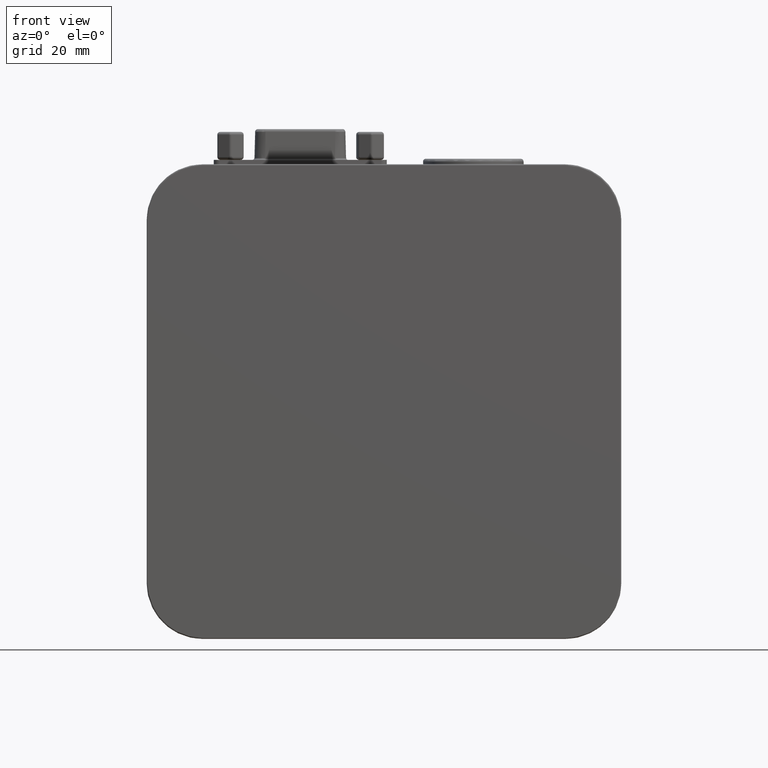
[diagram: clean part render]
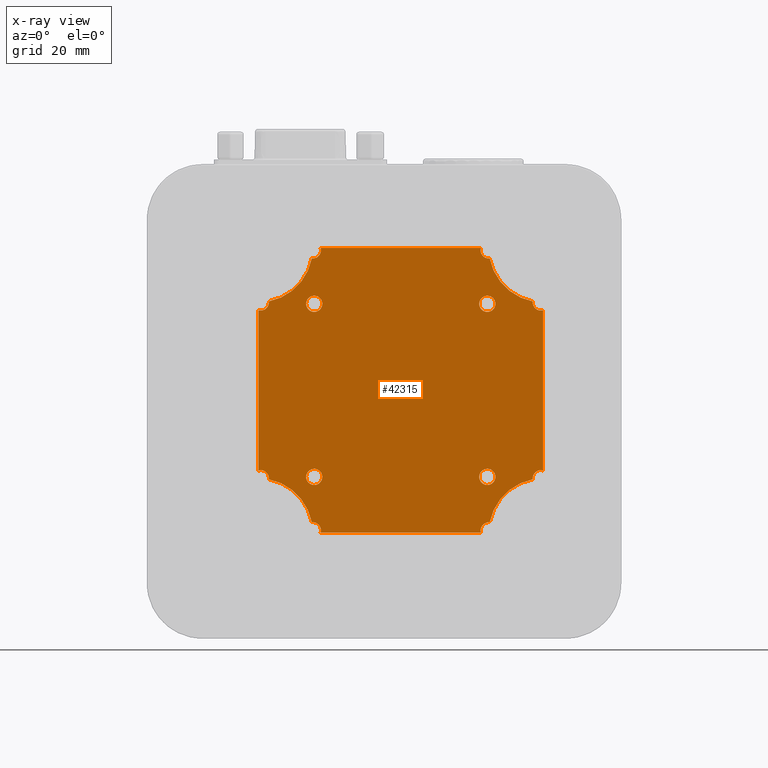
[diagram: x-ray — body ghosted, one internal face saturated and labeled with its STEP entity id]
A machine part, front view, then the same camera in x-ray: the body is ghosted and one INTERNAL B-rep face — a face not visible from any outside direction — is saturated and labeled: STEP entity #42315.
In plain terms, the highlighted planar face has unit normal (-0, 1, 0).
Its self-contained STEP definition (entity closure, byte-faithful):
#973 = AXIS2_PLACEMENT_3D ( 'NONE', #16420, #20670, #34145 ) ;
#1034 = AXIS2_PLACEMENT_3D ( 'NONE', #24856, #37917, #20821 ) ;
#1065 = FACE_BOUND ( 'NONE', #15195, .T. ) ;
#1177 = CARTESIAN_POINT ( 'NONE',  ( 20.00000000000008171, 7.999999999999974243, 18.99999999999998934 ) ) ;
#1305 = EDGE_CURVE ( 'NONE', #3630, #41778, #33175, .T. ) ;
#1423 = VERTEX_POINT ( 'NONE', #17817 ) ;
#1501 = DIRECTION ( 'NONE',  ( -1.224646799147328802E-16, 1.000000000000000000, 1.224646799147328309E-16 ) ) ;
#1565 = AXIS2_PLACEMENT_3D ( 'NONE', #42273, #38899, #21571 ) ;
#1704 = EDGE_CURVE ( 'NONE', #5914, #1423, #9496, .T. ) ;
#1780 = VERTEX_POINT ( 'NONE', #13074 ) ;
#1902 = VERTEX_POINT ( 'NONE', #6319 ) ;
#2017 = ORIENTED_EDGE ( 'NONE', *, *, #19184, .T. ) ;
#2599 = CARTESIAN_POINT ( 'NONE',  ( 71.00000000000002842, 7.999999999999989342, 58.86215995157945002 ) ) ;
#2784 = CARTESIAN_POINT ( 'NONE',  ( 71.00000000000004263, 7.999999999999992895, 18.99999999999999289 ) ) ;
#3086 = EDGE_CURVE ( 'NONE', #1780, #36948, #16733, .T. ) ;
#3379 = VERTEX_POINT ( 'NONE', #28805 ) ;
#3412 = ORIENTED_EDGE ( 'NONE', *, *, #44252, .T. ) ;
#3630 = VERTEX_POINT ( 'NONE', #13976 ) ;
#3783 = DIRECTION ( 'NONE',  ( 1.000000000000000000, 0.000000000000000000, -2.392722035830067435E-15 ) ) ;
#4211 = DIRECTION ( 'NONE',  ( 1.000000000000000000, 0.000000000000000000, 9.556366357953417310E-15 ) ) ;
#4308 = CARTESIAN_POINT ( 'NONE',  ( 20.00000000000009948, 7.999999999999983125, 30.13784004842055708 ) ) ;
#4437 = DIRECTION ( 'NONE',  ( -1.224646799147328802E-16, 1.000000000000000000, 1.224646799147328309E-16 ) ) ;
#4562 = EDGE_CURVE ( 'NONE', #14987, #5914, #21018, .T. ) ;
#5095 = DIRECTION ( 'NONE',  ( 1.000000000000000000, -1.376293218954789961E-32, 1.123828698946542475E-16 ) ) ;
#5323 = FACE_OUTER_BOUND ( 'NONE', #14648, .T. ) ;
#5339 = EDGE_CURVE ( 'NONE', #20765, #20765, #23214, .T. ) ;
#5792 = DIRECTION ( 'NONE',  ( 1.804112415015878885E-16, 0.000000000000000000, -1.000000000000000000 ) ) ;
#5914 = VERTEX_POINT ( 'NONE', #14911 ) ;
#6005 = CARTESIAN_POINT ( 'NONE',  ( 61.42885123418766824, 7.999999999999984901, 68.14107253969162059 ) ) ;
#6045 = CIRCLE ( 'NONE', #17491, 1.452203409538027623 ) ;
#6319 = CARTESIAN_POINT ( 'NONE',  ( 62.45000000000004547, 7.999999999999986677, 60.00000000000001421 ) ) ;
#6494 = VERTEX_POINT ( 'NONE', #11160 ) ;
#6505 = EDGE_CURVE ( 'NONE', #37858, #37858, #27561, .T. ) ;
#7111 = ORIENTED_EDGE ( 'NONE', *, *, #8720, .T. ) ;
#7130 = CARTESIAN_POINT ( 'NONE',  ( 30.00000000000009592, 7.999999999999986677, 29.00000000000000355 ) ) ;
#7211 = AXIS2_PLACEMENT_3D ( 'NONE', #11164, #4437, #3783 ) ;
#7448 = CIRCLE ( 'NONE', #38302, 9.749999999999994671 ) ;
#7849 = DIRECTION ( 'NONE',  ( 1.000000000000000000, 0.000000000000000000, 0.000000000000000000 ) ) ;
#7860 = ORIENTED_EDGE ( 'NONE', *, *, #38905, .T. ) ;
#7868 = CARTESIAN_POINT ( 'NONE',  ( 21.85892746030844691, 7.999999999999976019, 60.42885123418763271 ) ) ;
#7985 = DIRECTION ( 'NONE',  ( -1.000000000000000000, 5.431859435584274246E-33, -4.435449828772064343E-17 ) ) ;
#8720 = EDGE_CURVE ( 'NONE', #41778, #14987, #16197, .T. ) ;
#8747 = CIRCLE ( 'NONE', #31679, 1.449999999999999956 ) ;
#8810 = AXIS2_PLACEMENT_3D ( 'NONE', #26835, #13794, #34236 ) ;
#9190 = VERTEX_POINT ( 'NONE', #26034 ) ;
#9496 = CIRCLE ( 'NONE', #12343, 1.452203409538031176 ) ;
#9628 = CARTESIAN_POINT ( 'NONE',  ( 70.58000000000004093, 7.999999999999988454, 60.25000000000002132 ) ) ;
#9756 = ORIENTED_EDGE ( 'NONE', *, *, #1704, .T. ) ;
#10866 = CIRCLE ( 'NONE', #43896, 9.750000000000008882 ) ;
#11075 = VERTEX_POINT ( 'NONE', #7868 ) ;
#11160 = CARTESIAN_POINT ( 'NONE',  ( 29.57072744002673659, 7.999999999999981348, 68.13890455142113467 ) ) ;
#11164 = CARTESIAN_POINT ( 'NONE',  ( 70.58000000000005514, 7.999999999999991118, 28.74999999999998224 ) ) ;
#11216 = VERTEX_POINT ( 'NONE', #34798 ) ;
#11222 = DIRECTION ( 'NONE',  ( -1.224646799147328802E-16, 1.000000000000000000, 1.224646799147328309E-16 ) ) ;
#11386 = ORIENTED_EDGE ( 'NONE', *, *, #16742, .T. ) ;
#11503 = CIRCLE ( 'NONE', #7211, 1.450000000000006839 ) ;
#11762 = CIRCLE ( 'NONE', #17501, 1.449999999999999956 ) ;
#12262 = FACE_BOUND ( 'NONE', #12392, .T. ) ;
#12343 = AXIS2_PLACEMENT_3D ( 'NONE', #18932, #37121, #23414 ) ;
#12392 = EDGE_LOOP ( 'NONE', ( #16462 ) ) ;
#13074 = CARTESIAN_POINT ( 'NONE',  ( 69.14107253969164901, 7.999999999999988454, 60.42885123418764692 ) ) ;
#13693 = DIRECTION ( 'NONE',  ( 1.000000000000000000, 0.000000000000000000, 0.000000000000000000 ) ) ;
#13794 = DIRECTION ( 'NONE',  ( -1.224646799147328802E-16, 1.000000000000000000, 1.224646799147328309E-16 ) ) ;
#13976 = CARTESIAN_POINT ( 'NONE',  ( 20.00000000000007461, 7.999999999999968914, 58.86215995157942871 ) ) ;
#14648 = EDGE_LOOP ( 'NONE', ( #30537, #7111, #32149, #9756, #33653, #44243, #29437, #7860, #18156, #21723, #35025, #30645, #11386, #3412, #2017, #16445 ) ) ;
#14748 = DIRECTION ( 'NONE',  ( -1.224646799147328802E-16, 1.000000000000000000, 1.224646799147328309E-16 ) ) ;
#14752 = FACE_BOUND ( 'NONE', #26384, .T. ) ;
#14863 = DIRECTION ( 'NONE',  ( 1.000000000000000000, 1.779203565104417128E-16, 7.116814260417668513E-16 ) ) ;
#14911 = CARTESIAN_POINT ( 'NONE',  ( 29.57072744002675080, 7.999999999999983125, 20.86109544857877296 ) ) ;
#14987 = VERTEX_POINT ( 'NONE', #28374 ) ;
#15195 = EDGE_LOOP ( 'NONE', ( #15599 ) ) ;
#15289 = AXIS2_PLACEMENT_3D ( 'NONE', #1177, #27674, #14863 ) ;
#15300 = AXIS2_PLACEMENT_3D ( 'NONE', #31872, #11222, #7849 ) ;
#15599 = ORIENTED_EDGE ( 'NONE', *, *, #5339, .T. ) ;
#16197 = CIRCLE ( 'NONE', #18328, 1.449999999999999956 ) ;
#16420 = CARTESIAN_POINT ( 'NONE',  ( 61.25000000000006395, 7.999999999999991118, 19.41999999999998749 ) ) ;
#16445 = ORIENTED_EDGE ( 'NONE', *, *, #41270, .T. ) ;
#16462 = ORIENTED_EDGE ( 'NONE', *, *, #31816, .T. ) ;
#16733 = CIRCLE ( 'NONE', #8810, 9.750000000000008882 ) ;
#16742 = EDGE_CURVE ( 'NONE', #3379, #33450, #17656, .T. ) ;
#16959 = CARTESIAN_POINT ( 'NONE',  ( 31.45000000000004192, 7.999999999999983125, 60.00000000000001421 ) ) ;
#17095 = ORIENTED_EDGE ( 'NONE', *, *, #6505, .T. ) ;
#17357 = EDGE_CURVE ( 'NONE', #36948, #3379, #42474, .T. ) ;
#17491 = AXIS2_PLACEMENT_3D ( 'NONE', #21250, #34943, #4211 ) ;
#17501 = AXIS2_PLACEMENT_3D ( 'NONE', #41349, #37084, #13693 ) ;
#17656 = LINE ( 'NONE', #24839, #42449 ) ;
#17817 = CARTESIAN_POINT ( 'NONE',  ( 31.14014198651581111, 7.999999999999988454, 18.99999999999998934 ) ) ;
#18066 = EDGE_CURVE ( 'NONE', #28944, #29740, #36450, .T. ) ;
#18156 = ORIENTED_EDGE ( 'NONE', *, *, #18066, .T. ) ;
#18328 = AXIS2_PLACEMENT_3D ( 'NONE', #39491, #18584, #28906 ) ;
#18484 = AXIS2_PLACEMENT_3D ( 'NONE', #9628, #32972, #23327 ) ;
#18584 = DIRECTION ( 'NONE',  ( -1.224646799147328802E-16, 1.000000000000000000, 1.224646799147328309E-16 ) ) ;
#18932 = CARTESIAN_POINT ( 'NONE',  ( 29.75000000000008171, 7.999999999999988454, 19.41999999999998749 ) ) ;
#19010 = DIRECTION ( 'NONE',  ( -1.000000000000000000, -1.224646799147328802E-16, 0.000000000000000000 ) ) ;
#19184 = EDGE_CURVE ( 'NONE', #6494, #11075, #10866, .T. ) ;
#19532 = VECTOR ( 'NONE', #5792, 1000.000000000000000 ) ;
#20670 = DIRECTION ( 'NONE',  ( -1.224646799147328802E-16, 1.000000000000000000, 1.224646799147328309E-16 ) ) ;
#20765 = VERTEX_POINT ( 'NONE', #34455 ) ;
#20821 = DIRECTION ( 'NONE',  ( 1.000000000000000000, 0.000000000000000000, 0.000000000000000000 ) ) ;
#20879 = EDGE_LOOP ( 'NONE', ( #17095 ) ) ;
#21018 = CIRCLE ( 'NONE', #15289, 9.750000000000001776 ) ;
#21250 = CARTESIAN_POINT ( 'NONE',  ( 29.75000000000009948, 7.999999999999981348, 69.57999999999989882 ) ) ;
#21251 = DIRECTION ( 'NONE',  ( 1.000000000000000000, 0.000000000000000000, 0.000000000000000000 ) ) ;
#21571 = DIRECTION ( 'NONE',  ( 1.000000000000000000, 0.000000000000000000, 0.000000000000000000 ) ) ;
#21646 = CARTESIAN_POINT ( 'NONE',  ( 31.14014198651577914, 7.999999999999983125, 70.00000000000000000 ) ) ;
#21680 = AXIS2_PLACEMENT_3D ( 'NONE', #28879, #1501, #19010 ) ;
#21723 = ORIENTED_EDGE ( 'NONE', *, *, #25736, .T. ) ;
#21729 = CIRCLE ( 'NONE', #15300, 1.449999999999999956 ) ;
#22354 = EDGE_CURVE ( 'NONE', #9190, #34314, #7448, .T. ) ;
#22595 = PLANE ( 'NONE',  #21680 ) ;
#22980 = ORIENTED_EDGE ( 'NONE', *, *, #34896, .T. ) ;
#23214 = CIRCLE ( 'NONE', #27496, 1.449999999999999956 ) ;
#23327 = DIRECTION ( 'NONE',  ( 1.000000000000000000, 0.000000000000000000, 0.000000000000000000 ) ) ;
#23414 = DIRECTION ( 'NONE',  ( 1.000000000000000000, 0.000000000000000000, 0.000000000000000000 ) ) ;
#23624 = CARTESIAN_POINT ( 'NONE',  ( 71.00000000000004263, 7.999999999999991118, 30.13784004842056419 ) ) ;
#24591 = VERTEX_POINT ( 'NONE', #29338 ) ;
#24839 = CARTESIAN_POINT ( 'NONE',  ( 20.00000000000009237, 7.999999999999984901, 70.00000000000000000 ) ) ;
#24856 = CARTESIAN_POINT ( 'NONE',  ( 30.00000000000003908, 7.999999999999983125, 60.00000000000001421 ) ) ;
#24883 = DIRECTION ( 'NONE',  ( 1.000000000000000000, 0.000000000000000000, 4.785444071660157747E-15 ) ) ;
#25521 = LINE ( 'NONE', #35400, #28122 ) ;
#25736 = EDGE_CURVE ( 'NONE', #29740, #1780, #26381, .T. ) ;
#26034 = CARTESIAN_POINT ( 'NONE',  ( 61.42885123418768956, 7.999999999999991118, 20.85892746030837230 ) ) ;
#26234 = CARTESIAN_POINT ( 'NONE',  ( 20.00000000000009237, 7.999999999999981348, 70.00000000000000000 ) ) ;
#26381 = CIRCLE ( 'NONE', #18484, 1.449999999999993072 ) ;
#26384 = EDGE_LOOP ( 'NONE', ( #22980 ) ) ;
#26835 = CARTESIAN_POINT ( 'NONE',  ( 71.00000000000002842, 7.999999999999986677, 70.00000000000000000 ) ) ;
#27000 = DIRECTION ( 'NONE',  ( 1.000000000000000000, 1.779203565104418607E-16, 1.779203565104418311E-15 ) ) ;
#27469 = CIRCLE ( 'NONE', #973, 1.449999999999999956 ) ;
#27496 = AXIS2_PLACEMENT_3D ( 'NONE', #7130, #14748, #21251 ) ;
#27561 = CIRCLE ( 'NONE', #1034, 1.449999999999999956 ) ;
#27587 = DIRECTION ( 'NONE',  ( -1.224646799147328802E-16, 1.000000000000000000, 1.224646799147328309E-16 ) ) ;
#27674 = DIRECTION ( 'NONE',  ( -1.224646799147328802E-16, 1.000000000000000000, 1.224646799147328309E-16 ) ) ;
#28122 = VECTOR ( 'NONE', #5095, 1000.000000000000000 ) ;
#28374 = CARTESIAN_POINT ( 'NONE',  ( 21.85892746030847178, 7.999999999999979572, 28.57114876581236018 ) ) ;
#28805 = CARTESIAN_POINT ( 'NONE',  ( 59.86215995157948555, 7.999999999999984901, 70.00000000000000000 ) ) ;
#28879 = CARTESIAN_POINT ( 'NONE',  ( 45.50000000000004974, 7.999999999999986677, 44.50000000000000711 ) ) ;
#28906 = DIRECTION ( 'NONE',  ( 1.000000000000000000, 0.000000000000000000, -2.392722035830078873E-15 ) ) ;
#28944 = VERTEX_POINT ( 'NONE', #23624 ) ;
#29034 = CARTESIAN_POINT ( 'NONE',  ( 71.00000000000002842, 7.999999999999991118, 70.00000000000000000 ) ) ;
#29338 = CARTESIAN_POINT ( 'NONE',  ( 59.86215995157949266, 7.999999999999989342, 18.99999999999999289 ) ) ;
#29437 = ORIENTED_EDGE ( 'NONE', *, *, #22354, .T. ) ;
#29740 = VERTEX_POINT ( 'NONE', #2599 ) ;
#30537 = ORIENTED_EDGE ( 'NONE', *, *, #1305, .T. ) ;
#30645 = ORIENTED_EDGE ( 'NONE', *, *, #17357, .T. ) ;
#31175 = CARTESIAN_POINT ( 'NONE',  ( 20.00000000000009237, 7.999999999999979572, 70.00000000000000000 ) ) ;
#31679 = AXIS2_PLACEMENT_3D ( 'NONE', #35656, #32060, #24883 ) ;
#31692 = EDGE_CURVE ( 'NONE', #24591, #9190, #27469, .T. ) ;
#31816 = EDGE_CURVE ( 'NONE', #1902, #1902, #21729, .T. ) ;
#31872 = CARTESIAN_POINT ( 'NONE',  ( 61.00000000000004974, 7.999999999999986677, 60.00000000000001421 ) ) ;
#32060 = DIRECTION ( 'NONE',  ( -1.224646799147328802E-16, 1.000000000000000000, 1.224646799147328309E-16 ) ) ;
#32149 = ORIENTED_EDGE ( 'NONE', *, *, #4562, .T. ) ;
#32972 = DIRECTION ( 'NONE',  ( -1.224646799147328802E-16, 1.000000000000000000, 1.224646799147328309E-16 ) ) ;
#33155 = VECTOR ( 'NONE', #36667, 1000.000000000000000 ) ;
#33175 = LINE ( 'NONE', #26234, #19532 ) ;
#33450 = VERTEX_POINT ( 'NONE', #21646 ) ;
#33653 = ORIENTED_EDGE ( 'NONE', *, *, #42268, .T. ) ;
#34145 = DIRECTION ( 'NONE',  ( 1.000000000000000000, 0.000000000000000000, 0.000000000000000000 ) ) ;
#34236 = DIRECTION ( 'NONE',  ( 1.000000000000000000, 1.779203565104415896E-16, 1.423362852083532716E-15 ) ) ;
#34314 = VERTEX_POINT ( 'NONE', #35701 ) ;
#34455 = CARTESIAN_POINT ( 'NONE',  ( 31.45000000000009521, 7.999999999999986677, 29.00000000000000355 ) ) ;
#34798 = CARTESIAN_POINT ( 'NONE',  ( 62.45000000000005258, 7.999999999999989342, 29.00000000000000355 ) ) ;
#34896 = EDGE_CURVE ( 'NONE', #11216, #11216, #11762, .T. ) ;
#34943 = DIRECTION ( 'NONE',  ( -1.224646799147328802E-16, 1.000000000000000000, 1.224646799147328309E-16 ) ) ;
#35025 = ORIENTED_EDGE ( 'NONE', *, *, #3086, .T. ) ;
#35400 = CARTESIAN_POINT ( 'NONE',  ( 20.00000000000008171, 7.999999999999988454, 18.99999999999998934 ) ) ;
#35656 = CARTESIAN_POINT ( 'NONE',  ( 20.42000000000007276, 7.999999999999968914, 60.25000000000000000 ) ) ;
#35701 = CARTESIAN_POINT ( 'NONE',  ( 69.14107253969166322, 7.999999999999991118, 28.57114876581234952 ) ) ;
#36074 = FACE_BOUND ( 'NONE', #20879, .T. ) ;
#36450 = LINE ( 'NONE', #29034, #33155 ) ;
#36667 = DIRECTION ( 'NONE',  ( -1.804112415015878885E-16, 0.000000000000000000, 1.000000000000000000 ) ) ;
#36948 = VERTEX_POINT ( 'NONE', #6005 ) ;
#37084 = DIRECTION ( 'NONE',  ( -1.224646799147328802E-16, 1.000000000000000000, 1.224646799147328309E-16 ) ) ;
#37121 = DIRECTION ( 'NONE',  ( -1.224646799147328802E-16, 1.000000000000000000, 1.224646799147328309E-16 ) ) ;
#37138 = DIRECTION ( 'NONE',  ( -1.224646799147328802E-16, 1.000000000000000000, 1.224646799147328309E-16 ) ) ;
#37858 = VERTEX_POINT ( 'NONE', #16959 ) ;
#37917 = DIRECTION ( 'NONE',  ( -1.224646799147328802E-16, 1.000000000000000000, 1.224646799147328309E-16 ) ) ;
#38302 = AXIS2_PLACEMENT_3D ( 'NONE', #2784, #37138, #27000 ) ;
#38899 = DIRECTION ( 'NONE',  ( -1.224646799147328802E-16, 1.000000000000000000, 1.224646799147328309E-16 ) ) ;
#38905 = EDGE_CURVE ( 'NONE', #34314, #28944, #11503, .T. ) ;
#39491 = CARTESIAN_POINT ( 'NONE',  ( 20.42000000000007987, 7.999999999999984901, 28.74999999999997868 ) ) ;
#41270 = EDGE_CURVE ( 'NONE', #11075, #3630, #8747, .T. ) ;
#41318 = DIRECTION ( 'NONE',  ( 1.000000000000000000, 1.779203565104415896E-16, 0.000000000000000000 ) ) ;
#41349 = CARTESIAN_POINT ( 'NONE',  ( 61.00000000000005684, 7.999999999999989342, 29.00000000000000355 ) ) ;
#41778 = VERTEX_POINT ( 'NONE', #4308 ) ;
#42268 = EDGE_CURVE ( 'NONE', #1423, #24591, #25521, .T. ) ;
#42273 = CARTESIAN_POINT ( 'NONE',  ( 61.25000000000006395, 7.999999999999984901, 69.57999999999999829 ) ) ;
#42315 = ADVANCED_FACE ( 'NONE', ( #1065, #12262, #36074, #14752, #5323 ), #22595, .F. ) ;
#42449 = VECTOR ( 'NONE', #7985, 1000.000000000000000 ) ;
#42474 = CIRCLE ( 'NONE', #1565, 1.449999999999999956 ) ;
#43896 = AXIS2_PLACEMENT_3D ( 'NONE', #31175, #27587, #41318 ) ;
#44243 = ORIENTED_EDGE ( 'NONE', *, *, #31692, .T. ) ;
#44252 = EDGE_CURVE ( 'NONE', #33450, #6494, #6045, .T. ) ;